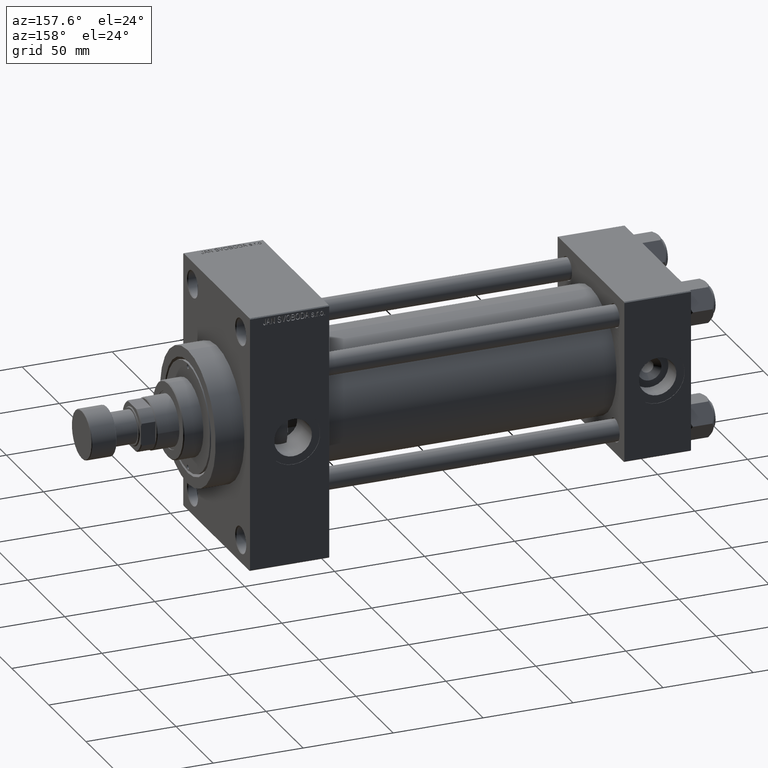
[diagram: clean part render]
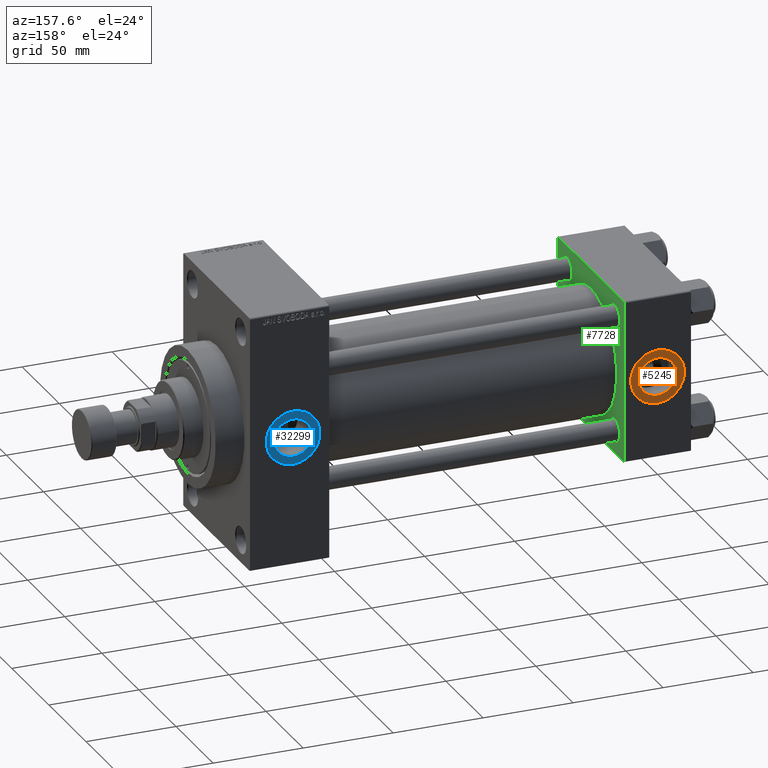
[diagram: same view with three faces highlighted in distinct colors, each labeled with its STEP entity id]
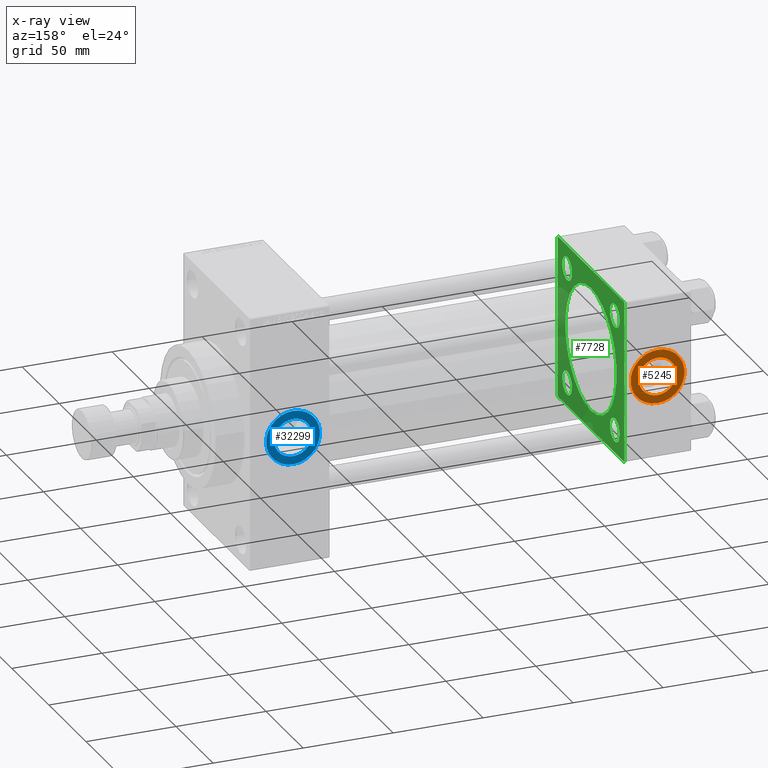
[diagram: x-ray of the same camera — body ghosted, the three highlighted faces saturated]
A machine part, auxiliary view with three faces highlighted in distinct colors.
The next image is the same camera in x-ray (body ghosted, the three faces saturated) — at least one of them is partly hidden behind the body in this view.
Their STEP definitions:

[orange] entity #5245 — the highlighted planar face has unit normal (0, 1, 0).
#837 = CARTESIAN_POINT ( 'NONE',  ( 18.50000000000000000, 44.79999999999998295, 0.000000000000000000 ) ) ;
#1032 = DIRECTION ( 'NONE',  ( 0.000000000000000000, 1.000000000000000000, 0.000000000000000000 ) ) ;
#2792 = CARTESIAN_POINT ( 'NONE',  ( 18.50000000000000000, 44.79999999999998295, 0.000000000000000000 ) ) ;
#4904 = DIRECTION ( 'NONE',  ( 0.000000000000000000, 0.000000000000000000, 1.000000000000000000 ) ) ;
#5245 = ADVANCED_FACE ( 'NONE', ( #28551, #32195 ), #40170, .T. ) ;
#7158 = AXIS2_PLACEMENT_3D ( 'NONE', #39693, #21757, #36063 ) ;
#13654 = ORIENTED_EDGE ( 'NONE', *, *, #38701, .F. ) ;
#13798 = CARTESIAN_POINT ( 'NONE',  ( 18.50000000000000355, 44.79999999999998295, -15.00000000000000178 ) ) ;
#13976 = VERTEX_POINT ( 'NONE', #13798 ) ;
#16416 = EDGE_CURVE ( 'NONE', #13976, #34707, #31407, .T. ) ;
#18040 = AXIS2_PLACEMENT_3D ( 'NONE', #837, #44654, #26246 ) ;
#19032 = AXIS2_PLACEMENT_3D ( 'NONE', #2792, #27753, #39130 ) ;
#19201 = CARTESIAN_POINT ( 'NONE',  ( 18.50000000000000000, 44.79999999999998295, 15.00000000000000178 ) ) ;
#21757 = DIRECTION ( 'NONE',  ( 0.000000000000000000, 1.000000000000000000, 0.000000000000000000 ) ) ;
#22506 = AXIS2_PLACEMENT_3D ( 'NONE', #28059, #46457, #31705 ) ;
#24132 = EDGE_LOOP ( 'NONE', ( #13654, #25974 ) ) ;
#25974 = ORIENTED_EDGE ( 'NONE', *, *, #34743, .F. ) ;
#26246 = DIRECTION ( 'NONE',  ( 0.000000000000000000, 0.000000000000000000, 1.000000000000000000 ) ) ;
#27753 = DIRECTION ( 'NONE',  ( 0.000000000000000000, 1.000000000000000000, 0.000000000000000000 ) ) ;
#27962 = EDGE_CURVE ( 'NONE', #34707, #13976, #36396, .T. ) ;
#28059 = CARTESIAN_POINT ( 'NONE',  ( 18.50000000000000000, 44.79999999999998295, 0.000000000000000000 ) ) ;
#28551 = FACE_BOUND ( 'NONE', #24132, .T. ) ;
#29154 = CARTESIAN_POINT ( 'NONE',  ( 18.50000000000000000, 44.79999999999998295, 10.48000000000000043 ) ) ;
#29615 = CIRCLE ( 'NONE', #35805, 10.48000000000000043 ) ;
#30852 = ORIENTED_EDGE ( 'NONE', *, *, #16416, .T. ) ;
#31407 = CIRCLE ( 'NONE', #19032, 15.00000000000000178 ) ;
#31705 = DIRECTION ( 'NONE',  ( 0.000000000000000000, 0.000000000000000000, 1.000000000000000000 ) ) ;
#32195 = FACE_OUTER_BOUND ( 'NONE', #45193, .T. ) ;
#34707 = VERTEX_POINT ( 'NONE', #19201 ) ;
#34743 = EDGE_CURVE ( 'NONE', #35234, #45244, #29615, .T. ) ;
#35163 = CARTESIAN_POINT ( 'NONE',  ( 18.50000000000000000, 44.79999999999998295, 0.000000000000000000 ) ) ;
#35234 = VERTEX_POINT ( 'NONE', #37730 ) ;
#35805 = AXIS2_PLACEMENT_3D ( 'NONE', #35163, #1032, #4904 ) ;
#36063 = DIRECTION ( 'NONE',  ( 0.000000000000000000, -0.000000000000000000, 1.000000000000000000 ) ) ;
#36396 = CIRCLE ( 'NONE', #22506, 15.00000000000000178 ) ;
#37730 = CARTESIAN_POINT ( 'NONE',  ( 18.50000000000000000, 44.79999999999998295, -10.48000000000000043 ) ) ;
#38701 = EDGE_CURVE ( 'NONE', #45244, #35234, #47409, .T. ) ;
#39130 = DIRECTION ( 'NONE',  ( 0.000000000000000000, 0.000000000000000000, 1.000000000000000000 ) ) ;
#39693 = CARTESIAN_POINT ( 'NONE',  ( 18.50000000000000000, 44.79999999999998295, 0.000000000000000000 ) ) ;
#40170 = PLANE ( 'NONE',  #7158 ) ;
#44467 = ORIENTED_EDGE ( 'NONE', *, *, #27962, .T. ) ;
#44654 = DIRECTION ( 'NONE',  ( 0.000000000000000000, 1.000000000000000000, 0.000000000000000000 ) ) ;
#45193 = EDGE_LOOP ( 'NONE', ( #44467, #30852 ) ) ;
#45244 = VERTEX_POINT ( 'NONE', #29154 ) ;
#46457 = DIRECTION ( 'NONE',  ( 0.000000000000000000, 1.000000000000000000, 0.000000000000000000 ) ) ;
#47409 = CIRCLE ( 'NONE', #18040, 10.48000000000000043 ) ;

[blue] entity #32299 — the highlighted planar face has unit normal (0, 1, 0).
#2054 = DIRECTION ( 'NONE',  ( 0.000000000000000000, -0.000000000000000000, 1.000000000000000000 ) ) ;
#3955 = VERTEX_POINT ( 'NONE', #17719 ) ;
#4870 = CIRCLE ( 'NONE', #41230, 10.47999999999998622 ) ;
#5238 = CARTESIAN_POINT ( 'NONE',  ( 221.0000000000000284, 44.80000000000000426, -2.198945251238207943E-15 ) ) ;
#6164 = EDGE_CURVE ( 'NONE', #13965, #44949, #4870, .T. ) ;
#7524 = DIRECTION ( 'NONE',  ( 0.000000000000000000, 1.000000000000000000, 0.000000000000000000 ) ) ;
#10981 = AXIS2_PLACEMENT_3D ( 'NONE', #39556, #42714, #2054 ) ;
#11951 = ORIENTED_EDGE ( 'NONE', *, *, #6164, .F. ) ;
#12074 = CARTESIAN_POINT ( 'NONE',  ( 221.0000000000000284, 44.80000000000000426, -2.198945251238207943E-15 ) ) ;
#13498 = EDGE_CURVE ( 'NONE', #44949, #13965, #15202, .T. ) ;
#13965 = VERTEX_POINT ( 'NONE', #20581 ) ;
#14577 = EDGE_LOOP ( 'NONE', ( #11951, #21288 ) ) ;
#14736 = VERTEX_POINT ( 'NONE', #33446 ) ;
#15202 = CIRCLE ( 'NONE', #25194, 10.47999999999998622 ) ;
#16103 = ORIENTED_EDGE ( 'NONE', *, *, #16362, .T. ) ;
#16362 = EDGE_CURVE ( 'NONE', #3955, #14736, #23659, .T. ) ;
#17570 = DIRECTION ( 'NONE',  ( 0.000000000000000000, 0.000000000000000000, 1.000000000000000000 ) ) ;
#17719 = CARTESIAN_POINT ( 'NONE',  ( 221.0000000000000284, 44.80000000000001137, -15.00000000000002665 ) ) ;
#18904 = CARTESIAN_POINT ( 'NONE',  ( 221.0000000000000284, 44.80000000000001137, -2.198945251238207943E-15 ) ) ;
#20581 = CARTESIAN_POINT ( 'NONE',  ( 221.0000000000000284, 44.80000000000000426, 10.47999999999998444 ) ) ;
#20686 = PLANE ( 'NONE',  #10981 ) ;
#20724 = CARTESIAN_POINT ( 'NONE',  ( 221.0000000000000284, 44.80000000000001137, -2.198945251238207943E-15 ) ) ;
#21288 = ORIENTED_EDGE ( 'NONE', *, *, #13498, .F. ) ;
#22181 = CARTESIAN_POINT ( 'NONE',  ( 221.0000000000000284, 44.80000000000000426, -10.47999999999998799 ) ) ;
#22287 = DIRECTION ( 'NONE',  ( 0.000000000000000000, 0.000000000000000000, 1.000000000000000000 ) ) ;
#23659 = CIRCLE ( 'NONE', #45331, 15.00000000000002487 ) ;
#24557 = FACE_BOUND ( 'NONE', #14577, .T. ) ;
#25194 = AXIS2_PLACEMENT_3D ( 'NONE', #12074, #37974, #34348 ) ;
#26479 = AXIS2_PLACEMENT_3D ( 'NONE', #18904, #7524, #22287 ) ;
#32299 = ADVANCED_FACE ( 'NONE', ( #24557, #39328 ), #20686, .T. ) ;
#32393 = EDGE_CURVE ( 'NONE', #14736, #3955, #47346, .T. ) ;
#33446 = CARTESIAN_POINT ( 'NONE',  ( 221.0000000000000284, 44.80000000000001137, 15.00000000000002309 ) ) ;
#34348 = DIRECTION ( 'NONE',  ( 0.000000000000000000, 0.000000000000000000, 1.000000000000000000 ) ) ;
#35199 = ORIENTED_EDGE ( 'NONE', *, *, #32393, .T. ) ;
#35721 = DIRECTION ( 'NONE',  ( 0.000000000000000000, 1.000000000000000000, 0.000000000000000000 ) ) ;
#37974 = DIRECTION ( 'NONE',  ( 0.000000000000000000, 1.000000000000000000, 0.000000000000000000 ) ) ;
#39328 = FACE_OUTER_BOUND ( 'NONE', #47487, .T. ) ;
#39556 = CARTESIAN_POINT ( 'NONE',  ( 221.0000000000000284, 44.80000000000001137, -2.198945251238207943E-15 ) ) ;
#39582 = DIRECTION ( 'NONE',  ( 0.000000000000000000, 1.000000000000000000, 0.000000000000000000 ) ) ;
#41230 = AXIS2_PLACEMENT_3D ( 'NONE', #5238, #39582, #45902 ) ;
#42714 = DIRECTION ( 'NONE',  ( 0.000000000000000000, 1.000000000000000000, 0.000000000000000000 ) ) ;
#44949 = VERTEX_POINT ( 'NONE', #22181 ) ;
#45331 = AXIS2_PLACEMENT_3D ( 'NONE', #20724, #35721, #17570 ) ;
#45902 = DIRECTION ( 'NONE',  ( 0.000000000000000000, 0.000000000000000000, 1.000000000000000000 ) ) ;
#47346 = CIRCLE ( 'NONE', #26479, 15.00000000000002487 ) ;
#47487 = EDGE_LOOP ( 'NONE', ( #35199, #16103 ) ) ;

[green] entity #7728 — the highlighted planar face has unit normal (-1, 0, 0).
#53 = CARTESIAN_POINT ( 'NONE',  ( 37.00000000000000000, -32.14999999999997726, 32.15000000000001279 ) ) ;
#321 = DIRECTION ( 'NONE',  ( 1.000000000000000000, -0.000000000000000000, 0.000000000000000000 ) ) ;
#397 = ORIENTED_EDGE ( 'NONE', *, *, #13821, .T. ) ;
#628 = DIRECTION ( 'NONE',  ( -0.000000000000000000, 0.7071067811865474617, 0.7071067811865474617 ) ) ;
#1037 = VERTEX_POINT ( 'NONE', #12237 ) ;
#1233 = VERTEX_POINT ( 'NONE', #24477 ) ;
#1390 = DIRECTION ( 'NONE',  ( 0.000000000000000000, 0.000000000000000000, 1.000000000000000000 ) ) ;
#1417 = EDGE_CURVE ( 'NONE', #17986, #46422, #14089, .T. ) ;
#1713 = DIRECTION ( 'NONE',  ( 0.000000000000000000, 7.709882115452476934E-17, -1.000000000000000000 ) ) ;
#2156 = DIRECTION ( 'NONE',  ( -1.000000000000000000, 0.000000000000000000, -0.000000000000000000 ) ) ;
#2709 = DIRECTION ( 'NONE',  ( 0.000000000000000000, 0.000000000000000000, 1.000000000000000000 ) ) ;
#2912 = AXIS2_PLACEMENT_3D ( 'NONE', #23199, #34341, #19567 ) ;
#3087 = EDGE_CURVE ( 'NONE', #1037, #37992, #28720, .T. ) ;
#3206 = CARTESIAN_POINT ( 'NONE',  ( 37.00000000000000000, 32.14999999999999147, -32.15000000000000568 ) ) ;
#3283 = LINE ( 'NONE', #7647, #34665 ) ;
#3545 = ORIENTED_EDGE ( 'NONE', *, *, #9101, .T. ) ;
#3683 = FACE_BOUND ( 'NONE', #9116, .T. ) ;
#4106 = AXIS2_PLACEMENT_3D ( 'NONE', #18184, #27297, #12544 ) ;
#4247 = AXIS2_PLACEMENT_3D ( 'NONE', #32071, #35473, #16854 ) ;
#4928 = CARTESIAN_POINT ( 'NONE',  ( 37.00000000000000711, -2.602085213965210642E-15, 0.000000000000000000 ) ) ;
#4935 = EDGE_CURVE ( 'NONE', #17198, #8212, #40224, .T. ) ;
#5017 = DIRECTION ( 'NONE',  ( -1.000000000000000000, 0.000000000000000000, -0.000000000000000000 ) ) ;
#5123 = EDGE_CURVE ( 'NONE', #1233, #18360, #5346, .T. ) ;
#5346 = LINE ( 'NONE', #19883, #33436 ) ;
#5489 = CARTESIAN_POINT ( 'NONE',  ( 37.00000000000000000, 32.14999999999999147, -32.15000000000000568 ) ) ;
#5516 = ORIENTED_EDGE ( 'NONE', *, *, #22292, .T. ) ;
#6226 = VERTEX_POINT ( 'NONE', #23872 ) ;
#6361 = CARTESIAN_POINT ( 'NONE',  ( 37.00000000000000000, -32.14999999999997726, -32.15000000000001279 ) ) ;
#6522 = ORIENTED_EDGE ( 'NONE', *, *, #1417, .T. ) ;
#7595 = EDGE_LOOP ( 'NONE', ( #6522, #9399 ) ) ;
#7647 = CARTESIAN_POINT ( 'NONE',  ( 37.00000000000000000, 44.99999999999998579, -44.49999999999998579 ) ) ;
#7728 = ADVANCED_FACE ( 'NONE', ( #47512, #47262, #14355, #3683, #10463, #25228 ), #47751, .F. ) ;
#8212 = VERTEX_POINT ( 'NONE', #25059 ) ;
#8956 = ORIENTED_EDGE ( 'NONE', *, *, #20573, .T. ) ;
#9101 = EDGE_CURVE ( 'NONE', #18360, #8212, #42260, .T. ) ;
#9116 = EDGE_LOOP ( 'NONE', ( #14215, #46964 ) ) ;
#9293 = EDGE_CURVE ( 'NONE', #37992, #1037, #33577, .T. ) ;
#9310 = EDGE_CURVE ( 'NONE', #27732, #45889, #19699, .T. ) ;
#9399 = ORIENTED_EDGE ( 'NONE', *, *, #36034, .T. ) ;
#9768 = EDGE_CURVE ( 'NONE', #43013, #6226, #38266, .T. ) ;
#10252 = CIRCLE ( 'NONE', #41173, 6.499999999999977796 ) ;
#10463 = FACE_BOUND ( 'NONE', #42979, .T. ) ;
#11145 = DIRECTION ( 'NONE',  ( 0.000000000000000000, -0.7071067811865474617, 0.7071067811865474617 ) ) ;
#12094 = ORIENTED_EDGE ( 'NONE', *, *, #3087, .F. ) ;
#12237 = CARTESIAN_POINT ( 'NONE',  ( 37.00000000000000711, 1.622946243093158675E-15, -34.50000000000000000 ) ) ;
#12544 = DIRECTION ( 'NONE',  ( 0.000000000000000000, 0.000000000000000000, 1.000000000000000000 ) ) ;
#12723 = AXIS2_PLACEMENT_3D ( 'NONE', #4928, #321, #41246 ) ;
#12975 = DIRECTION ( 'NONE',  ( 0.000000000000000000, 0.7071067811865474617, -0.7071067811865474617 ) ) ;
#13463 = CIRCLE ( 'NONE', #19652, 6.499999999999977796 ) ;
#13641 = CARTESIAN_POINT ( 'NONE',  ( 37.00000000000000000, -32.14999999999997726, 38.64999999999999147 ) ) ;
#13821 = EDGE_CURVE ( 'NONE', #13922, #22819, #35695, .T. ) ;
#13922 = VERTEX_POINT ( 'NONE', #24682 ) ;
#14089 = CIRCLE ( 'NONE', #45030, 6.499999999999977796 ) ;
#14122 = DIRECTION ( 'NONE',  ( -1.000000000000000000, 0.000000000000000000, -0.000000000000000000 ) ) ;
#14215 = ORIENTED_EDGE ( 'NONE', *, *, #9768, .T. ) ;
#14355 = FACE_BOUND ( 'NONE', #7595, .T. ) ;
#14356 = DIRECTION ( 'NONE',  ( -1.000000000000000000, 0.000000000000000000, -0.000000000000000000 ) ) ;
#14745 = VERTEX_POINT ( 'NONE', #33203 ) ;
#14982 = EDGE_LOOP ( 'NONE', ( #5516, #36005 ) ) ;
#15707 = VECTOR ( 'NONE', #21819, 1000.000000000000000 ) ;
#16368 = ORIENTED_EDGE ( 'NONE', *, *, #25659, .T. ) ;
#16854 = DIRECTION ( 'NONE',  ( 0.000000000000000000, 0.000000000000000000, 1.000000000000000000 ) ) ;
#17092 = ORIENTED_EDGE ( 'NONE', *, *, #4935, .F. ) ;
#17198 = VERTEX_POINT ( 'NONE', #43212 ) ;
#17506 = VECTOR ( 'NONE', #28429, 1000.000000000000000 ) ;
#17776 = CARTESIAN_POINT ( 'NONE',  ( 37.00000000000000000, 44.99999999999998579, 45.00000000000001421 ) ) ;
#17977 = CARTESIAN_POINT ( 'NONE',  ( 37.00000000000000000, 0.000000000000000000, 0.000000000000000000 ) ) ;
#17986 = VERTEX_POINT ( 'NONE', #28684 ) ;
#18184 = CARTESIAN_POINT ( 'NONE',  ( 37.00000000000000711, -2.602085213965210642E-15, 0.000000000000000000 ) ) ;
#18216 = DIRECTION ( 'NONE',  ( -1.000000000000000000, 0.000000000000000000, -0.000000000000000000 ) ) ;
#18360 = VERTEX_POINT ( 'NONE', #22077 ) ;
#18973 = DIRECTION ( 'NONE',  ( 0.000000000000000000, 0.000000000000000000, -1.000000000000000000 ) ) ;
#19567 = DIRECTION ( 'NONE',  ( 0.000000000000000000, 0.000000000000000000, 1.000000000000000000 ) ) ;
#19652 = AXIS2_PLACEMENT_3D ( 'NONE', #6361, #14356, #36374 ) ;
#19699 = LINE ( 'NONE', #22355, #45957 ) ;
#19883 = CARTESIAN_POINT ( 'NONE',  ( 37.00000000000000000, -45.00000000000000711, 45.00000000000000000 ) ) ;
#20573 = EDGE_CURVE ( 'NONE', #27732, #13922, #40683, .T. ) ;
#20745 = AXIS2_PLACEMENT_3D ( 'NONE', #3206, #40019, #47521 ) ;
#21103 = CARTESIAN_POINT ( 'NONE',  ( 37.00000000000000000, -32.14999999999997726, -32.15000000000001279 ) ) ;
#21123 = EDGE_CURVE ( 'NONE', #6226, #43013, #45472, .T. ) ;
#21269 = EDGE_CURVE ( 'NONE', #17198, #45889, #3283, .T. ) ;
#21707 = CARTESIAN_POINT ( 'NONE',  ( 37.00000000000000000, 44.99999999999998579, -44.49999999999995737 ) ) ;
#21819 = DIRECTION ( 'NONE',  ( 0.000000000000000000, -1.000000000000000000, -1.541976423090495633E-16 ) ) ;
#21902 = VECTOR ( 'NONE', #32861, 1000.000000000000114 ) ;
#22077 = CARTESIAN_POINT ( 'NONE',  ( 37.00000000000000000, -45.00000000000000000, -44.49999999999995737 ) ) ;
#22292 = EDGE_CURVE ( 'NONE', #34161, #29796, #41645, .T. ) ;
#22355 = CARTESIAN_POINT ( 'NONE',  ( 37.00000000000000000, 44.99999999999998579, 45.00000000000001421 ) ) ;
#22524 = ORIENTED_EDGE ( 'NONE', *, *, #9293, .F. ) ;
#22819 = VERTEX_POINT ( 'NONE', #24654 ) ;
#23199 = CARTESIAN_POINT ( 'NONE',  ( 37.00000000000000000, 32.14999999999999147, 32.15000000000000568 ) ) ;
#23536 = CARTESIAN_POINT ( 'NONE',  ( 37.00000000000000000, 32.14999999999999147, -38.64999999999992752 ) ) ;
#23820 = ORIENTED_EDGE ( 'NONE', *, *, #38432, .T. ) ;
#23872 = CARTESIAN_POINT ( 'NONE',  ( 37.00000000000000000, 32.14999999999999147, 38.64999999999992752 ) ) ;
#24477 = CARTESIAN_POINT ( 'NONE',  ( 37.00000000000000000, -45.00000000000000711, 44.49999999999997158 ) ) ;
#24553 = VECTOR ( 'NONE', #11145, 1000.000000000000114 ) ;
#24654 = CARTESIAN_POINT ( 'NONE',  ( 37.00000000000000000, -44.49999999999995737, 45.00000000000000000 ) ) ;
#24682 = CARTESIAN_POINT ( 'NONE',  ( 37.00000000000000000, 44.49999999999998579, 45.00000000000001421 ) ) ;
#25059 = CARTESIAN_POINT ( 'NONE',  ( 37.00000000000000000, -44.49999999999995737, -45.00000000000000000 ) ) ;
#25228 = FACE_OUTER_BOUND ( 'NONE', #40274, .T. ) ;
#25461 = CIRCLE ( 'NONE', #26273, 6.499999999999977796 ) ;
#25659 = EDGE_CURVE ( 'NONE', #29213, #14745, #25461, .T. ) ;
#25738 = ORIENTED_EDGE ( 'NONE', *, *, #39982, .T. ) ;
#26273 = AXIS2_PLACEMENT_3D ( 'NONE', #21103, #35875, #2709 ) ;
#26394 = CARTESIAN_POINT ( 'NONE',  ( 37.00000000000000000, 44.49999999999998579, 45.00000000000001421 ) ) ;
#26622 = AXIS2_PLACEMENT_3D ( 'NONE', #5489, #5017, #1390 ) ;
#27297 = DIRECTION ( 'NONE',  ( 1.000000000000000000, -0.000000000000000000, 0.000000000000000000 ) ) ;
#27360 = AXIS2_PLACEMENT_3D ( 'NONE', #17977, #18216, #40725 ) ;
#27732 = VERTEX_POINT ( 'NONE', #35658 ) ;
#28429 = DIRECTION ( 'NONE',  ( 0.000000000000000000, -1.000000000000000000, -1.541976423090495387E-16 ) ) ;
#28684 = CARTESIAN_POINT ( 'NONE',  ( 37.00000000000000000, -32.14999999999997726, 25.65000000000003411 ) ) ;
#28720 = CIRCLE ( 'NONE', #4106, 34.50000000000000000 ) ;
#29213 = VERTEX_POINT ( 'NONE', #33555 ) ;
#29714 = CIRCLE ( 'NONE', #26622, 6.499999999999922728 ) ;
#29796 = VERTEX_POINT ( 'NONE', #30721 ) ;
#30721 = CARTESIAN_POINT ( 'NONE',  ( 37.00000000000000000, 32.14999999999999147, -25.65000000000008384 ) ) ;
#31364 = CARTESIAN_POINT ( 'NONE',  ( 37.00000000000000000, -44.49999999999998579, -45.00000000000000000 ) ) ;
#31902 = ORIENTED_EDGE ( 'NONE', *, *, #9310, .F. ) ;
#32071 = CARTESIAN_POINT ( 'NONE',  ( 37.00000000000000000, 32.14999999999999147, 32.15000000000000568 ) ) ;
#32095 = ORIENTED_EDGE ( 'NONE', *, *, #21269, .T. ) ;
#32861 = DIRECTION ( 'NONE',  ( -0.000000000000000000, -0.7071067811865425767, -0.7071067811865524577 ) ) ;
#33203 = CARTESIAN_POINT ( 'NONE',  ( 37.00000000000000000, -32.14999999999997726, -25.65000000000003411 ) ) ;
#33436 = VECTOR ( 'NONE', #1713, 1000.000000000000000 ) ;
#33555 = CARTESIAN_POINT ( 'NONE',  ( 37.00000000000000000, -32.14999999999997726, -38.64999999999999147 ) ) ;
#33577 = CIRCLE ( 'NONE', #12723, 34.50000000000000000 ) ;
#33593 = LINE ( 'NONE', #47392, #21902 ) ;
#34083 = CARTESIAN_POINT ( 'NONE',  ( 37.00000000000000000, 32.14999999999999147, 25.65000000000008384 ) ) ;
#34161 = VERTEX_POINT ( 'NONE', #23536 ) ;
#34341 = DIRECTION ( 'NONE',  ( -1.000000000000000000, 0.000000000000000000, -0.000000000000000000 ) ) ;
#34665 = VECTOR ( 'NONE', #628, 1000.000000000000114 ) ;
#35473 = DIRECTION ( 'NONE',  ( -1.000000000000000000, 0.000000000000000000, -0.000000000000000000 ) ) ;
#35551 = DIRECTION ( 'NONE',  ( 0.000000000000000000, 0.000000000000000000, 1.000000000000000000 ) ) ;
#35658 = CARTESIAN_POINT ( 'NONE',  ( 37.00000000000000000, 44.99999999999998579, 44.50000000000001421 ) ) ;
#35695 = LINE ( 'NONE', #17776, #17506 ) ;
#35875 = DIRECTION ( 'NONE',  ( -1.000000000000000000, 0.000000000000000000, -0.000000000000000000 ) ) ;
#36005 = ORIENTED_EDGE ( 'NONE', *, *, #40626, .T. ) ;
#36034 = EDGE_CURVE ( 'NONE', #46422, #17986, #10252, .T. ) ;
#36047 = EDGE_LOOP ( 'NONE', ( #16368, #25738 ) ) ;
#36374 = DIRECTION ( 'NONE',  ( 0.000000000000000000, 0.000000000000000000, 1.000000000000000000 ) ) ;
#37992 = VERTEX_POINT ( 'NONE', #39563 ) ;
#38252 = CARTESIAN_POINT ( 'NONE',  ( 37.00000000000000000, -32.14999999999997726, 32.15000000000001279 ) ) ;
#38266 = CIRCLE ( 'NONE', #4247, 6.499999999999922728 ) ;
#38432 = EDGE_CURVE ( 'NONE', #22819, #1233, #33593, .T. ) ;
#39144 = ORIENTED_EDGE ( 'NONE', *, *, #5123, .T. ) ;
#39563 = CARTESIAN_POINT ( 'NONE',  ( 37.00000000000000711, -2.602085213965210642E-15, 34.50000000000000000 ) ) ;
#39982 = EDGE_CURVE ( 'NONE', #14745, #29213, #13463, .T. ) ;
#40019 = DIRECTION ( 'NONE',  ( -1.000000000000000000, 0.000000000000000000, -0.000000000000000000 ) ) ;
#40224 = LINE ( 'NONE', #40461, #15707 ) ;
#40274 = EDGE_LOOP ( 'NONE', ( #17092, #32095, #31902, #8956, #397, #23820, #39144, #3545 ) ) ;
#40461 = CARTESIAN_POINT ( 'NONE',  ( 37.00000000000000000, 44.99999999999998579, -44.99999999999998579 ) ) ;
#40626 = EDGE_CURVE ( 'NONE', #29796, #34161, #29714, .T. ) ;
#40683 = LINE ( 'NONE', #26394, #24553 ) ;
#40725 = DIRECTION ( 'NONE',  ( -0.000000000000000000, 0.000000000000000000, 1.000000000000000000 ) ) ;
#41173 = AXIS2_PLACEMENT_3D ( 'NONE', #53, #14122, #47525 ) ;
#41246 = DIRECTION ( 'NONE',  ( 0.000000000000000000, 0.000000000000000000, 1.000000000000000000 ) ) ;
#41645 = CIRCLE ( 'NONE', #20745, 6.499999999999922728 ) ;
#42260 = LINE ( 'NONE', #31364, #45199 ) ;
#42979 = EDGE_LOOP ( 'NONE', ( #22524, #12094 ) ) ;
#43013 = VERTEX_POINT ( 'NONE', #34083 ) ;
#43212 = CARTESIAN_POINT ( 'NONE',  ( 37.00000000000000000, 44.49999999999998579, -44.99999999999998579 ) ) ;
#45030 = AXIS2_PLACEMENT_3D ( 'NONE', #38252, #2156, #35551 ) ;
#45199 = VECTOR ( 'NONE', #12975, 1000.000000000000114 ) ;
#45472 = CIRCLE ( 'NONE', #2912, 6.499999999999922728 ) ;
#45889 = VERTEX_POINT ( 'NONE', #21707 ) ;
#45957 = VECTOR ( 'NONE', #18973, 1000.000000000000000 ) ;
#46422 = VERTEX_POINT ( 'NONE', #13641 ) ;
#46964 = ORIENTED_EDGE ( 'NONE', *, *, #21123, .T. ) ;
#47262 = FACE_BOUND ( 'NONE', #14982, .T. ) ;
#47392 = CARTESIAN_POINT ( 'NONE',  ( 37.00000000000000000, -45.00000000000000711, 44.49999999999997158 ) ) ;
#47512 = FACE_BOUND ( 'NONE', #36047, .T. ) ;
#47521 = DIRECTION ( 'NONE',  ( 0.000000000000000000, 0.000000000000000000, 1.000000000000000000 ) ) ;
#47525 = DIRECTION ( 'NONE',  ( 0.000000000000000000, 0.000000000000000000, 1.000000000000000000 ) ) ;
#47751 = PLANE ( 'NONE',  #27360 ) ;